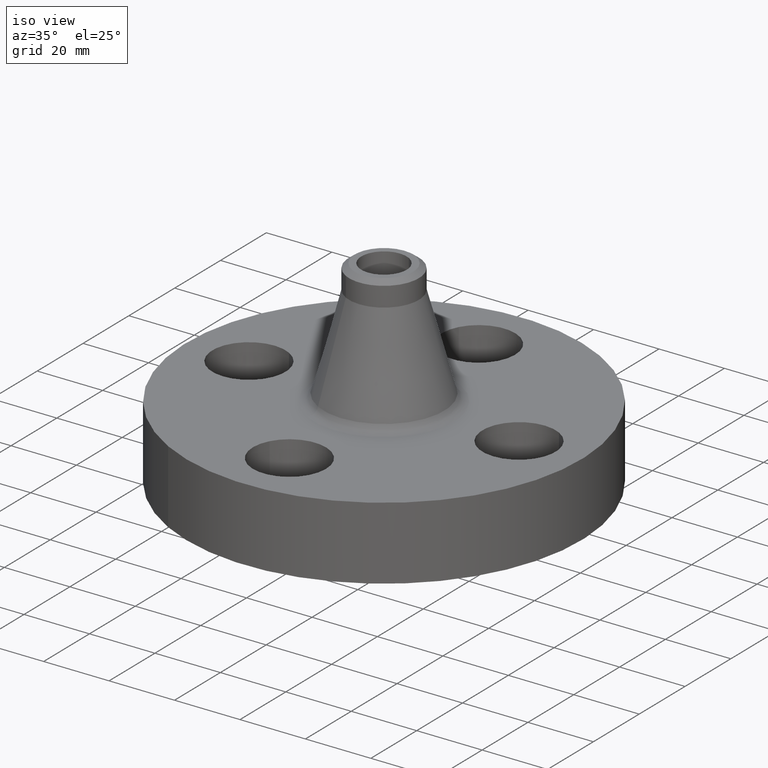
[diagram: clean part render]
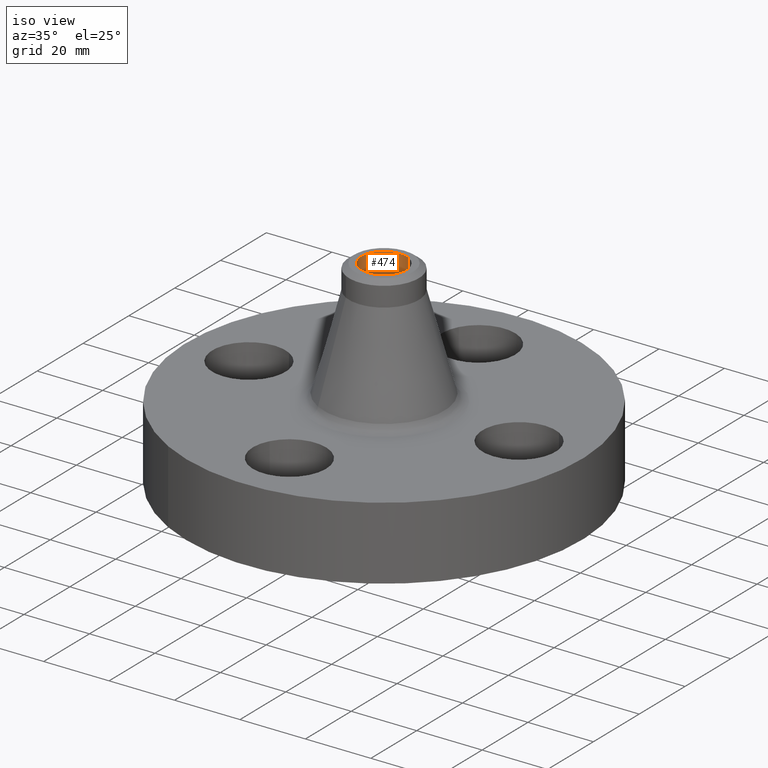
[diagram: same view with one face highlighted and labeled with its STEP entity id]
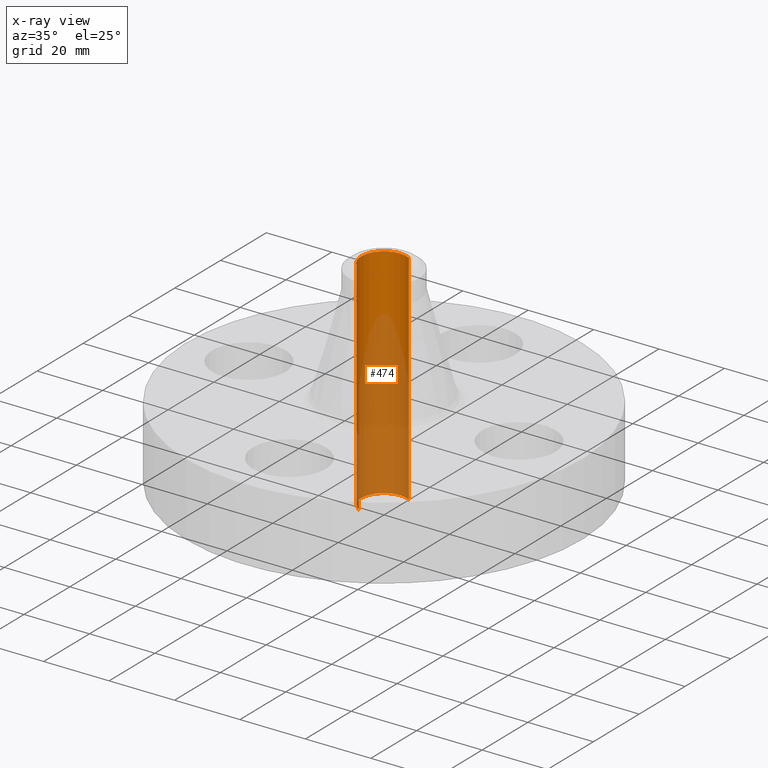
[diagram: x-ray of the same camera — body ghosted, the highlighted face saturated]
A machine part, iso view. The second image highlights one B-rep face of the part: STEP entity #474.
The next image is the same camera in x-ray: the body ghosted, the highlighted face saturated — about 64% of this face is hidden behind the body in this view.
In plain terms, the highlighted cylindrical surface (edge-blend (fillet) strip) has radius 6.9342 mm, axis along (0, 0, -1).
Its self-contained STEP definition (entity closure, byte-faithful):
#419=AXIS2_PLACEMENT_3D('Circle Axis2P3D',#417,#418,$) ;
#447=AXIS2_PLACEMENT_3D('Cylinder Axis2P3D',#444,#445,#446) ;
#458=AXIS2_PLACEMENT_3D('Circle Axis2P3D',#456,#457,$) ;
#417=CARTESIAN_POINT('Axis2P3D Location',(0.,0.,2.38000000001)) ;
#421=CARTESIAN_POINT('Vertex',(-0.130883172039,-0.239580039397,2.38000000001)) ;
#423=CARTESIAN_POINT('Vertex',(0.130883172039,0.239580039397,2.38000000001)) ;
#444=CARTESIAN_POINT('Axis2P3D Location',(0.,0.,1.065)) ;
#449=CARTESIAN_POINT('Line Origine',(-0.130883172039,-0.239580039397,1.065)) ;
#453=CARTESIAN_POINT('Vertex',(-0.130883172039,-0.239580039397,-0.250000000001)) ;
#456=CARTESIAN_POINT('Axis2P3D Location',(0.,0.,-0.250000000001)) ;
#460=CARTESIAN_POINT('Vertex',(0.130883172039,0.239580039397,-0.250000000001)) ;
#463=CARTESIAN_POINT('Line Origine',(0.130883172039,0.239580039397,1.065)) ;
#418=DIRECTION('Axis2P3D Direction',(0.,0.,-0.0393700787402)) ;
#445=DIRECTION('Axis2P3D Direction',(0.,0.,-0.0393700787402)) ;
#446=DIRECTION('Axis2P3D XDirection',(0.0188750212049,0.0345504945626,0.)) ;
#450=DIRECTION('Vector Direction',(0.,0.,-0.0393700787402)) ;
#457=DIRECTION('Axis2P3D Direction',(0.,0.,-0.0393700787402)) ;
#464=DIRECTION('Vector Direction',(0.,0.,-0.0393700787402)) ;
#451=VECTOR('Line Direction',#450,0.0393700787402) ;
#465=VECTOR('Line Direction',#464,0.0393700787402) ;
#469=ORIENTED_EDGE('',*,*,#425,.F.) ;
#470=ORIENTED_EDGE('',*,*,#455,.T.) ;
#471=ORIENTED_EDGE('',*,*,#462,.T.) ;
#472=ORIENTED_EDGE('',*,*,#467,.F.) ;
#474=ADVANCED_FACE('PartBody',(#473),#448,.F.) ;
#420=CIRCLE('generated circle',#419,0.273000000001) ;
#459=CIRCLE('generated circle',#458,0.273000000001) ;
#448=CYLINDRICAL_SURFACE('generated cylinder',#447,0.273000000001) ;
#425=EDGE_CURVE('',#422,#424,#420,.T.) ;
#455=EDGE_CURVE('',#422,#454,#452,.T.) ;
#462=EDGE_CURVE('',#454,#461,#459,.T.) ;
#467=EDGE_CURVE('',#424,#461,#466,.T.) ;
#468=EDGE_LOOP('',(#469,#470,#471,#472)) ;
#473=FACE_OUTER_BOUND('',#468,.T.) ;
#452=LINE('Line',#449,#451) ;
#466=LINE('Line',#463,#465) ;
#422=VERTEX_POINT('',#421) ;
#424=VERTEX_POINT('',#423) ;
#454=VERTEX_POINT('',#453) ;
#461=VERTEX_POINT('',#460) ;